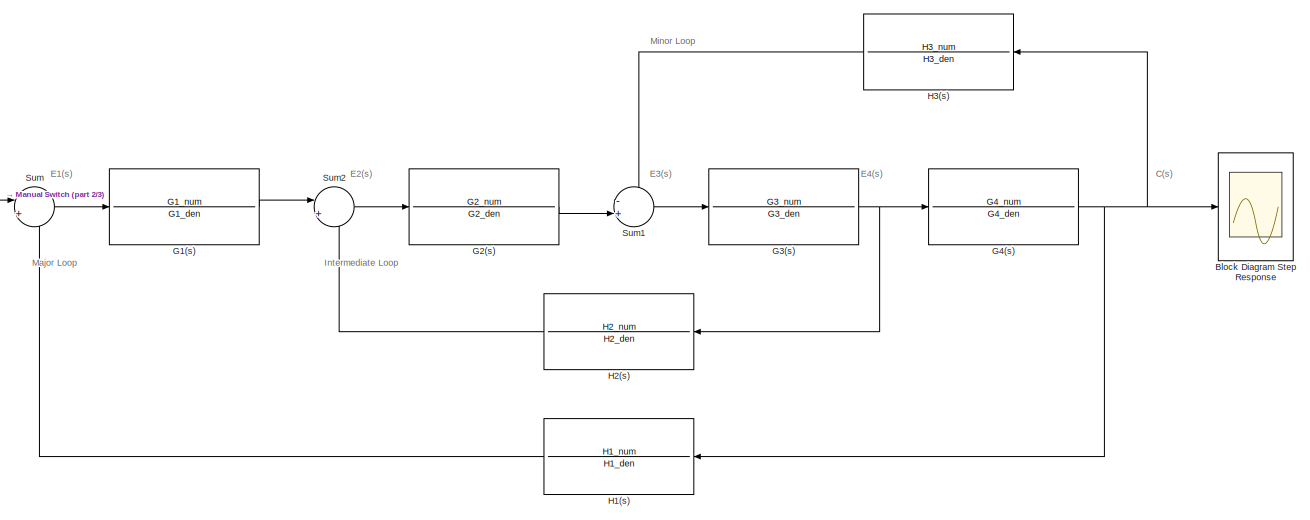
[diagram: root canvas - part 1/3, full width, top band]
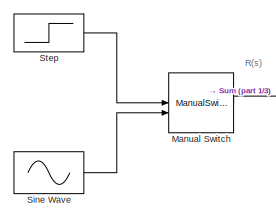
[diagram: root canvas - part 2/3, top left region]
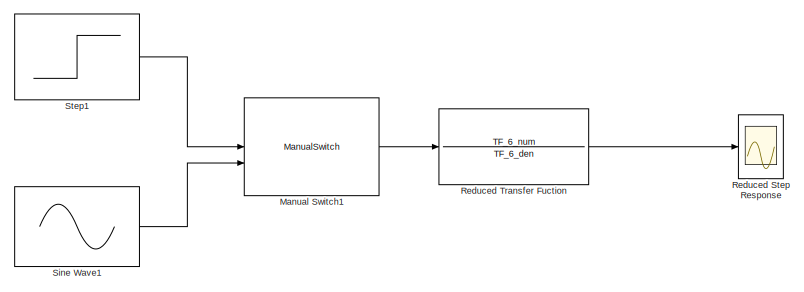
[diagram: root canvas - part 3/3, bottom center region]
MODEL slx_2326acbd6e5f
KIND model
CONFIG AbsTol = auto
CONFIG EnableMultiTasking = off
CONFIG FixedStep = auto
CONFIG MaxStep = auto
CONFIG MinStep = auto
CONFIG RelTol = 1e-3
CONFIG SampleTimeConstraint = Unconstrained
CONFIG SolverName = VariableStepAuto
CONFIG StartTime = 0.0
CONFIG StopTime = 20
BLOCK [Scope] Block Diagram Step Response
  Floating = off
  NumInputPorts = 1
  ScopeSpecificationString = Simulink.scopes.TimeScopeBlockCfg('CurrentConfiguration', extmgr.ConfigurationSet(extmgr.Configuration('Core','General UI',true),extmgr.Configuration('Core','Source UI',true),extmgr.Configuration('Sources','WiredSimulink',true),extmgr.Configuration('Visuals','Time Domain',true,'SerializedDisplays',{struct('MinYLimReal','-3004059761896.21387','MaxYLimReal','333784417989.46832','YLabelReal','','MinY...<+1498ch>
BLOCK [TransferFcn] G1(s)
  Denominator = G1_den
  Numerator = G1_num
BLOCK [TransferFcn] G2(s)
  Denominator = G2_den
  Numerator = G2_num
BLOCK [TransferFcn] G3(s)
  Denominator = G3_den
  Numerator = G3_num
BLOCK [TransferFcn] G4(s)
  Denominator = G4_den
  Numerator = G4_num
BLOCK [TransferFcn] H1(s)
  Denominator = H1_den
  Numerator = H1_num
BLOCK [TransferFcn] H2(s)
  Denominator = H2_den
  Numerator = H2_num
BLOCK [TransferFcn] H3(s)
  Denominator = H3_den
  Numerator = H3_num
BLOCK [ManualSwitch] Manual Switch
BLOCK [ManualSwitch] Manual Switch1
BLOCK [Scope] Reduced Step Response
  Floating = off
  NumInputPorts = 1
  ScopeSpecificationString = Simulink.scopes.TimeScopeBlockCfg('CurrentConfiguration', extmgr.ConfigurationSet(extmgr.Configuration('Core','General UI',true),extmgr.Configuration('Core','Source UI',true),extmgr.Configuration('Sources','WiredSimulink',true,'DataLoggingVariableName','ScopeData1'),extmgr.Configuration('Visuals','Time Domain',true,'SerializedDisplays',{struct('MinYLimReal','-3698143909037.75342','MaxYLimReal','41...<+1554ch>
BLOCK [TransferFcn] Reduced Transfer Fuction
  Denominator = TF_6_den
  Numerator = TF_6_num
BLOCK [Sin] Sine Wave
  SampleTime = 0
BLOCK [Sin] Sine Wave1
  SampleTime = 0
BLOCK [Step] Step
  SampleTime = 0
BLOCK [Step] Step1
  SampleTime = 0
BLOCK [Sum] Sum
  Inputs = |+-
BLOCK [Sum] Sum1
  Inputs = -+|
BLOCK [Sum] Sum2
  Inputs = |+-
ANNOTATION (root): C(s)
ANNOTATION (root): R(s)
ANNOTATION (root): E1(s)
ANNOTATION (root): E2(s)
ANNOTATION (root): E3(s)
ANNOTATION (root): E4(s)
ANNOTATION (root): Intermediate Loop
ANNOTATION (root): Major Loop
ANNOTATION (root): Minor Loop
LINE G1(s):1 -> Sum2:1
LINE G2(s):1 -> Sum1:2
NET G3(s):1 -> G4(s):1, H2(s):1
NET G4(s):1 -> Block Diagram Step Response:1, H1(s):1, H3(s):1
LINE H1(s):1 -> Sum:2
LINE H2(s):1 -> Sum2:2
LINE H3(s):1 -> Sum1:1
LINE Manual Switch1:1 -> Reduced Transfer Fuction:1
LINE Manual Switch:1 -> Sum:1
LINE Reduced Transfer Fuction:1 -> Reduced Step Response:1
LINE Sine Wave1:1 -> Manual Switch1:2
LINE Sine Wave:1 -> Manual Switch:2
LINE Step1:1 -> Manual Switch1:1
LINE Step:1 -> Manual Switch:1
LINE Sum1:1 -> G3(s):1
LINE Sum2:1 -> G2(s):1
LINE Sum:1 -> G1(s):1
note: NET lines group one-source signal fan-out (src -> all destinations, sorted); 1:1 wires keep LINE
